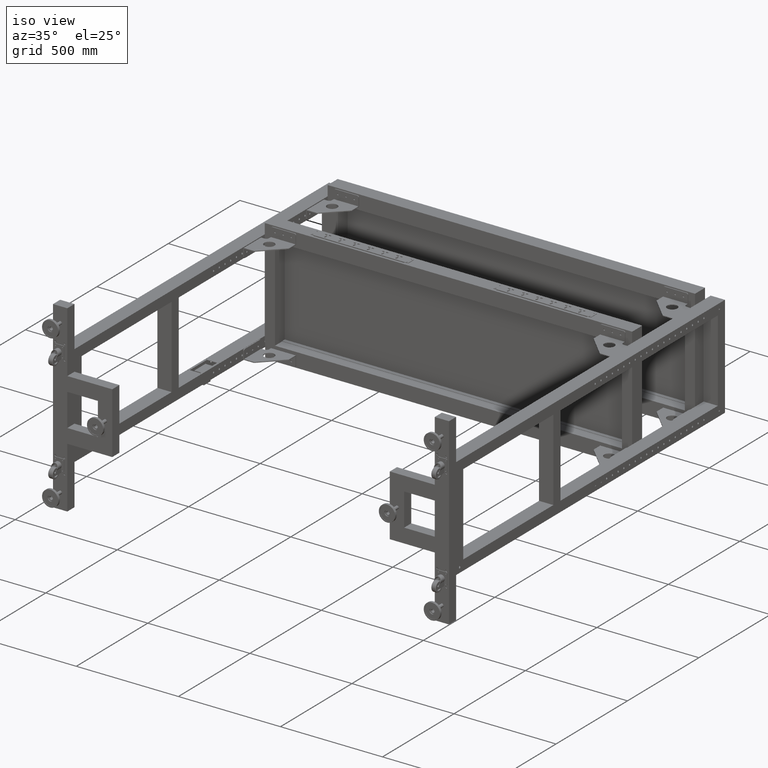
[diagram: clean part render]
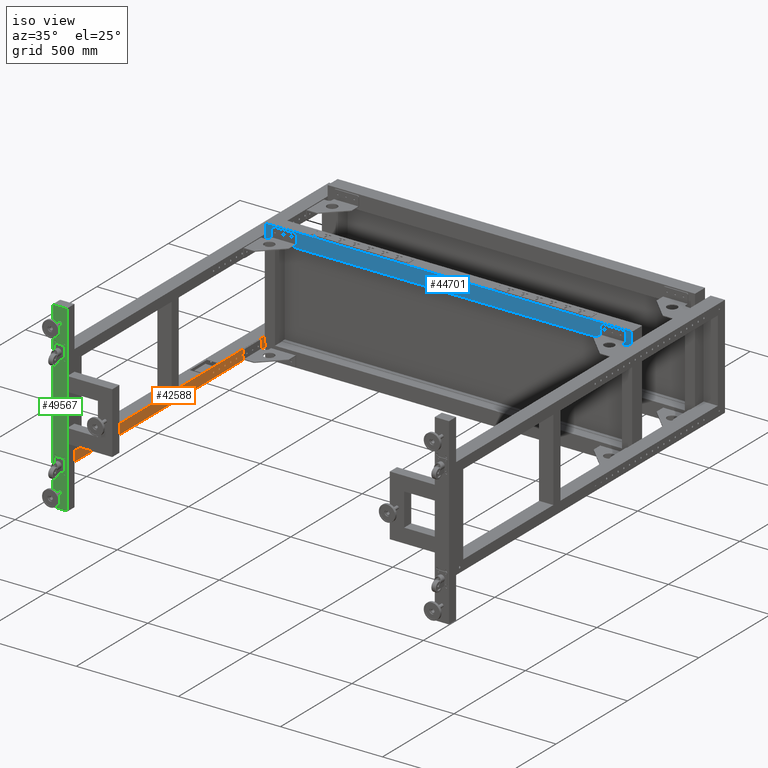
[diagram: same view with three faces highlighted in distinct colors, each labeled with its STEP entity id]
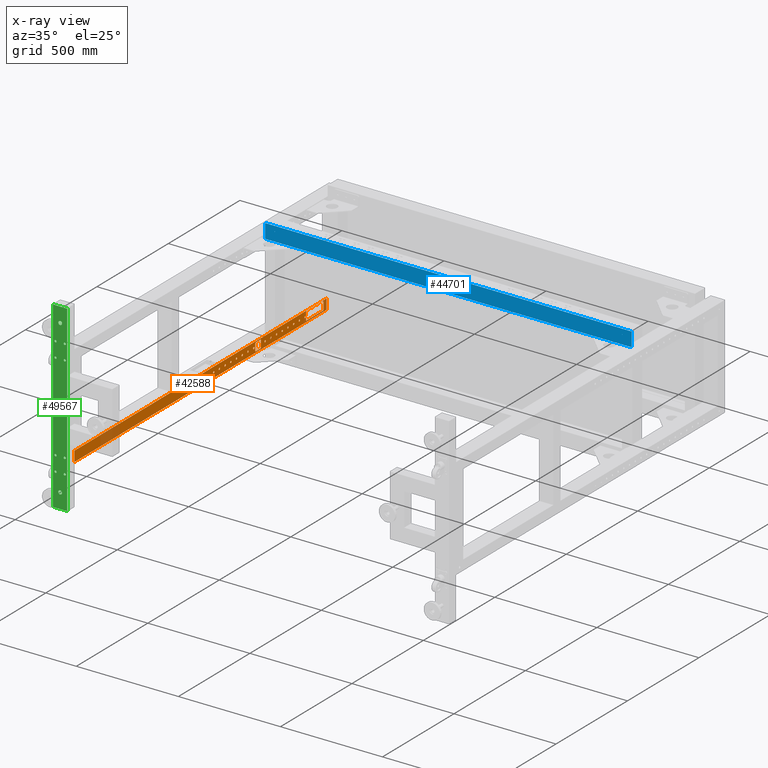
[diagram: x-ray of the same camera — body ghosted, the three highlighted faces saturated]
A machine part, iso view with three faces highlighted in distinct colors.
The next image is the same camera in x-ray (body ghosted, the three faces saturated) — at least one of them is partly hidden behind the body in this view.
Their STEP definitions:

[orange] entity #42588 — the highlighted planar face has unit normal (1, 0, -0).
#106 = VERTEX_POINT ( 'NONE', #49664 ) ;
#463 = DIRECTION ( 'NONE',  ( 1.000000000000000000, 0.000000000000000000, 0.000000000000000000 ) ) ;
#912 = ORIENTED_EDGE ( 'NONE', *, *, #78377, .F. ) ;
#976 = EDGE_CURVE ( 'NONE', #51626, #57045, #46276, .T. ) ;
#1163 = FACE_BOUND ( 'NONE', #53420, .T. ) ;
#1526 = ORIENTED_EDGE ( 'NONE', *, *, #976, .F. ) ;
#1594 = AXIS2_PLACEMENT_3D ( 'NONE', #24763, #25142, #25529 ) ;
#1618 = DIRECTION ( 'NONE',  ( 1.000000000000000000, 0.000000000000000000, 0.000000000000000000 ) ) ;
#1619 = VERTEX_POINT ( 'NONE', #31347 ) ;
#1625 = ORIENTED_EDGE ( 'NONE', *, *, #69213, .F. ) ;
#1938 = EDGE_CURVE ( 'NONE', #7045, #28703, #2931, .T. ) ;
#2304 = DIRECTION ( 'NONE',  ( 0.000000000000000000, 0.000000000000000000, -1.000000000000000000 ) ) ;
#2619 = DIRECTION ( 'NONE',  ( 0.000000000000000000, 1.000000000000000000, 0.000000000000000000 ) ) ;
#2707 = CIRCLE ( 'NONE', #34578, 4.500000000000003553 ) ;
#2758 = DIRECTION ( 'NONE',  ( 1.000000000000000000, 0.000000000000000000, 0.000000000000000000 ) ) ;
#2931 = CIRCLE ( 'NONE', #19459, 4.500000000000003553 ) ;
#3317 = AXIS2_PLACEMENT_3D ( 'NONE', #59276, #65247, #39728 ) ;
#3329 = CIRCLE ( 'NONE', #47959, 5.000000000000004441 ) ;
#3696 = ORIENTED_EDGE ( 'NONE', *, *, #15700, .T. ) ;
#3954 = CARTESIAN_POINT ( 'NONE',  ( -1318.172487437185055, -844.5589195979889610, -200.0000000000000000 ) ) ;
#4042 = VERTEX_POINT ( 'NONE', #11555 ) ;
#4644 = VERTEX_POINT ( 'NONE', #56912 ) ;
#4696 = VERTEX_POINT ( 'NONE', #28120 ) ;
#4967 = CARTESIAN_POINT ( 'NONE',  ( -1318.172487437185055, 420.4410804020109822, -210.0000000000000000 ) ) ;
#5196 = DIRECTION ( 'NONE',  ( 0.000000000000000000, 0.000000000000000000, -1.000000000000000000 ) ) ;
#5312 = AXIS2_PLACEMENT_3D ( 'NONE', #33895, #65401, #15517 ) ;
#5422 = ORIENTED_EDGE ( 'NONE', *, *, #63790, .F. ) ;
#5489 = AXIS2_PLACEMENT_3D ( 'NONE', #34529, #6468, #10588 ) ;
#5662 = AXIS2_PLACEMENT_3D ( 'NONE', #21085, #19916, #51006 ) ;
#5840 = EDGE_LOOP ( 'NONE', ( #46869, #49035, #43749, #69278, #48910, #64739 ) ) ;
#6080 = DIRECTION ( 'NONE',  ( 0.000000000000000000, 0.000000000000000000, -1.000000000000000000 ) ) ;
#6287 = VERTEX_POINT ( 'NONE', #17662 ) ;
#6362 = CARTESIAN_POINT ( 'NONE',  ( -1318.172487437185055, 289.4410804020109822, -225.0000000000000000 ) ) ;
#6375 = FACE_BOUND ( 'NONE', #38305, .T. ) ;
#6452 = CARTESIAN_POINT ( 'NONE',  ( -1318.172487437185055, -844.5589195979889610, -250.0000000000000000 ) ) ;
#6468 = DIRECTION ( 'NONE',  ( 1.000000000000000000, 0.000000000000000000, 0.000000000000000000 ) ) ;
#6903 = LINE ( 'NONE', #42828, #27802 ) ;
#6981 = CARTESIAN_POINT ( 'NONE',  ( -1318.172487437185055, 409.4410804020109822, -225.0000000000000000 ) ) ;
#7045 = VERTEX_POINT ( 'NONE', #77713 ) ;
#7048 = ORIENTED_EDGE ( 'NONE', *, *, #52225, .F. ) ;
#7052 = EDGE_CURVE ( 'NONE', #49271, #33398, #10689, .T. ) ;
#7080 = EDGE_CURVE ( 'NONE', #62890, #37401, #62044, .T. ) ;
#7149 = EDGE_CURVE ( 'NONE', #12536, #1619, #47655, .T. ) ;
#7468 = DIRECTION ( 'NONE',  ( 1.000000000000000000, 0.000000000000000000, 0.000000000000000000 ) ) ;
#7562 = FACE_BOUND ( 'NONE', #38190, .T. ) ;
#8051 = EDGE_CURVE ( 'NONE', #52617, #10089, #55404, .T. ) ;
#8303 = AXIS2_PLACEMENT_3D ( 'NONE', #36330, #18733, #5196 ) ;
#8470 = CIRCLE ( 'NONE', #33939, 4.499999999999893419 ) ;
#8724 = FACE_OUTER_BOUND ( 'NONE', #36743, .T. ) ;
#8990 = CARTESIAN_POINT ( 'NONE',  ( -1318.172487437185055, 489.4410804020110390, -225.0000000000000000 ) ) ;
#9263 = AXIS2_PLACEMENT_3D ( 'NONE', #12537, #36103, #54835 ) ;
#9878 = VERTEX_POINT ( 'NONE', #70071 ) ;
#10089 = VERTEX_POINT ( 'NONE', #11408 ) ;
#10175 = CARTESIAN_POINT ( 'NONE',  ( -1318.172487437185055, 409.4410804020109822, -220.5000000000000000 ) ) ;
#10409 = EDGE_CURVE ( 'NONE', #51678, #62356, #51293, .T. ) ;
#10549 = ORIENTED_EDGE ( 'NONE', *, *, #66693, .F. ) ;
#10587 = CARTESIAN_POINT ( 'NONE',  ( -1318.172487437185055, 460.4410804020110390, -210.0000000000000000 ) ) ;
#10588 = DIRECTION ( 'NONE',  ( 0.000000000000000000, 0.000000000000000000, -1.000000000000000000 ) ) ;
#10689 = CIRCLE ( 'NONE', #25936, 4.500000000000003553 ) ;
#10853 = DIRECTION ( 'NONE',  ( 4.625929269271499719E-16, 0.000000000000000000, 1.000000000000000000 ) ) ;
#11375 = VERTEX_POINT ( 'NONE', #12603 ) ;
#11408 = CARTESIAN_POINT ( 'NONE',  ( -1318.172487437184827, 782.9410804020109254, -200.9999999999986926 ) ) ;
#11430 = DIRECTION ( 'NONE',  ( 1.000000000000000000, 0.000000000000000000, 0.000000000000000000 ) ) ;
#11491 = EDGE_CURVE ( 'NONE', #57045, #78732, #63238, .T. ) ;
#11505 = CARTESIAN_POINT ( 'NONE',  ( -1318.172487437185055, 169.4410804020110106, -225.0000000000000000 ) ) ;
#11555 = CARTESIAN_POINT ( 'NONE',  ( -1318.172487437185055, 769.4410804020110390, -220.5000000000000000 ) ) ;
#11656 = DIRECTION ( 'NONE',  ( 0.000000000000000000, 1.000000000000000000, 0.000000000000000000 ) ) ;
#11672 = AXIS2_PLACEMENT_3D ( 'NONE', #18338, #25096, #55051 ) ;
#11774 = DIRECTION ( 'NONE',  ( 1.000000000000000000, 0.000000000000000000, 0.000000000000000000 ) ) ;
#11820 = CARTESIAN_POINT ( 'NONE',  ( -1318.172487437185055, 369.4410804020110959, -220.5000000000000000 ) ) ;
#11841 = AXIS2_PLACEMENT_3D ( 'NONE', #20298, #15898, #38679 ) ;
#11938 = ORIENTED_EDGE ( 'NONE', *, *, #67218, .F. ) ;
#12029 = CARTESIAN_POINT ( 'NONE',  ( -1318.172487437185055, 249.4410804020110675, -225.0000000000000000 ) ) ;
#12071 = CARTESIAN_POINT ( 'NONE',  ( -1318.172487437185055, 609.4410804020110390, -225.0000000000000000 ) ) ;
#12240 = CIRCLE ( 'NONE', #61901, 4.500000000000003553 ) ;
#12247 = DIRECTION ( 'NONE',  ( 0.000000000000000000, -1.000000000000000000, 0.000000000000000000 ) ) ;
#12380 = FACE_BOUND ( 'NONE', #5840, .T. ) ;
#12381 = ORIENTED_EDGE ( 'NONE', *, *, #35184, .F. ) ;
#12536 = VERTEX_POINT ( 'NONE', #74010 ) ;
#12537 = CARTESIAN_POINT ( 'NONE',  ( -1318.172487437185055, 369.4410804020110959, -225.0000000000000000 ) ) ;
#12603 = CARTESIAN_POINT ( 'NONE',  ( -1318.172487437185055, 649.4410804020110390, -229.5000000000000000 ) ) ;
#12815 = AXIS2_PLACEMENT_3D ( 'NONE', #42689, #48274, #73751 ) ;
#12929 = CIRCLE ( 'NONE', #49943, 4.499999999999893419 ) ;
#14158 = CIRCLE ( 'NONE', #57517, 4.499999999999893419 ) ;
#14172 = CARTESIAN_POINT ( 'NONE',  ( -1318.172487437185055, 329.4410804020110390, -229.5000000000000000 ) ) ;
#14319 = PLANE ( 'NONE',  #11841 ) ;
#14747 = CARTESIAN_POINT ( 'NONE',  ( -1318.172487437185055, 209.4410804020110390, -220.5000000000000000 ) ) ;
#14823 = CARTESIAN_POINT ( 'NONE',  ( -1318.172487437185055, 489.4410804020110390, -220.5000000000000000 ) ) ;
#14984 = DIRECTION ( 'NONE',  ( 1.000000000000000000, 0.000000000000000000, 0.000000000000000000 ) ) ;
#15024 = EDGE_LOOP ( 'NONE', ( #68508, #32543 ) ) ;
#15197 = AXIS2_PLACEMENT_3D ( 'NONE', #56997, #45007, #2304 ) ;
#15345 = CIRCLE ( 'NONE', #71471, 4.500000000000003553 ) ;
#15422 = AXIS2_PLACEMENT_3D ( 'NONE', #11505, #33984, #77717 ) ;
#15517 = DIRECTION ( 'NONE',  ( 0.000000000000000000, 0.000000000000000000, -1.000000000000000000 ) ) ;
#15623 = ORIENTED_EDGE ( 'NONE', *, *, #62219, .F. ) ;
#15700 = EDGE_CURVE ( 'NONE', #4644, #78732, #43161, .T. ) ;
#15710 = EDGE_CURVE ( 'NONE', #26434, #35495, #25799, .T. ) ;
#15866 = VERTEX_POINT ( 'NONE', #43935 ) ;
#15898 = DIRECTION ( 'NONE',  ( 1.000000000000000000, 0.000000000000000000, -2.775557561562890365E-16 ) ) ;
#16285 = CARTESIAN_POINT ( 'NONE',  ( -1318.172487437185055, 425.4410804020109822, -240.0000000000000000 ) ) ;
#16289 = CARTESIAN_POINT ( 'NONE',  ( -1318.172487437185055, 649.4410804020110390, -225.0000000000000000 ) ) ;
#16457 = DIRECTION ( 'NONE',  ( 0.000000000000000000, 0.000000000000000000, -1.000000000000000000 ) ) ;
#16573 = AXIS2_PLACEMENT_3D ( 'NONE', #45432, #70968, #57403 ) ;
#16636 = ORIENTED_EDGE ( 'NONE', *, *, #44828, .F. ) ;
#17050 = VECTOR ( 'NONE', #59401, 1000.000000000000000 ) ;
#17068 = AXIS2_PLACEMENT_3D ( 'NONE', #44837, #39653, #25695 ) ;
#17205 = CIRCLE ( 'NONE', #18457, 4.500000000000003553 ) ;
#17524 = VERTEX_POINT ( 'NONE', #37059 ) ;
#17566 = CARTESIAN_POINT ( 'NONE',  ( -1318.172487437185055, 919.4410804020110390, -200.0000000000000000 ) ) ;
#17662 = CARTESIAN_POINT ( 'NONE',  ( -1318.172487437185055, 689.4410804020110390, -229.5000000000000000 ) ) ;
#17832 = CARTESIAN_POINT ( 'NONE',  ( -1318.172487437185055, 775.9410804020110390, -243.9899999999987017 ) ) ;
#17924 = CARTESIAN_POINT ( 'NONE',  ( -1318.172487437185055, 851.4410804020109254, -243.9899999999986733 ) ) ;
#17998 = VERTEX_POINT ( 'NONE', #51283 ) ;
#18056 = CARTESIAN_POINT ( 'NONE',  ( -1318.172487437185055, 129.4410804020110675, -229.5000000000000000 ) ) ;
#18175 = CIRCLE ( 'NONE', #1594, 4.500000000000003553 ) ;
#18208 = CARTESIAN_POINT ( 'NONE',  ( -1318.172487437185055, 769.4410804020110390, -229.5000000000000000 ) ) ;
#18274 = EDGE_LOOP ( 'NONE', ( #46786, #25561 ) ) ;
#18338 = CARTESIAN_POINT ( 'NONE',  ( -1318.172487437185055, 529.4410804020111527, -225.0000000000000000 ) ) ;
#18353 = FACE_BOUND ( 'NONE', #70997, .T. ) ;
#18457 = AXIS2_PLACEMENT_3D ( 'NONE', #70316, #26433, #75883 ) ;
#18722 = EDGE_CURVE ( 'NONE', #9878, #106, #12929, .T. ) ;
#18733 = DIRECTION ( 'NONE',  ( 1.000000000000000000, 0.000000000000000000, 0.000000000000000000 ) ) ;
#18960 = VERTEX_POINT ( 'NONE', #17832 ) ;
#19138 = DIRECTION ( 'NONE',  ( -1.000000000000000000, 0.000000000000000000, 3.491776919586969661E-17 ) ) ;
#19349 = ORIENTED_EDGE ( 'NONE', *, *, #59146, .F. ) ;
#19354 = AXIS2_PLACEMENT_3D ( 'NONE', #69780, #21882, #34666 ) ;
#19372 = LINE ( 'NONE', #30189, #49979 ) ;
#19459 = AXIS2_PLACEMENT_3D ( 'NONE', #28501, #22897, #34495 ) ;
#19916 = DIRECTION ( 'NONE',  ( 1.000000000000000000, 0.000000000000000000, 0.000000000000000000 ) ) ;
#20298 = CARTESIAN_POINT ( 'NONE',  ( -1318.172487437185055, -844.5589195979889610, -250.0000000000000000 ) ) ;
#20370 = EDGE_CURVE ( 'NONE', #62744, #53084, #44030, .T. ) ;
#21085 = CARTESIAN_POINT ( 'NONE',  ( -1318.172487437185055, 169.4410804020110106, -225.0000000000000000 ) ) ;
#21153 = CARTESIAN_POINT ( 'NONE',  ( -1318.172487437184827, 896.9410804020110390, -207.9999999999986926 ) ) ;
#21170 = VECTOR ( 'NONE', #26701, 1000.000000000000000 ) ;
#21384 = CARTESIAN_POINT ( 'NONE',  ( -1318.172487437185055, 455.4410804020110390, -245.0000000000000000 ) ) ;
#21482 = VERTEX_POINT ( 'NONE', #67396 ) ;
#21701 = AXIS2_PLACEMENT_3D ( 'NONE', #16289, #33864, #53008 ) ;
#21882 = DIRECTION ( 'NONE',  ( -1.000000000000000000, 0.000000000000000000, 3.491776919586969661E-17 ) ) ;
#22115 = CARTESIAN_POINT ( 'NONE',  ( -1318.172487437185055, 129.4410804020110675, -225.0000000000000000 ) ) ;
#22206 = AXIS2_PLACEMENT_3D ( 'NONE', #16285, #53004, #47019 ) ;
#22480 = VECTOR ( 'NONE', #72964, 1000.000000000000000 ) ;
#22591 = DIRECTION ( 'NONE',  ( 0.000000000000000000, 0.000000000000000000, -1.000000000000000000 ) ) ;
#22897 = DIRECTION ( 'NONE',  ( 1.000000000000000000, 0.000000000000000000, 0.000000000000000000 ) ) ;
#23024 = EDGE_LOOP ( 'NONE', ( #57341, #33723, #16636, #5422, #69310, #47827, #49491, #7048 ) ) ;
#23235 = DIRECTION ( 'NONE',  ( 1.000000000000000000, 0.000000000000000000, 0.000000000000000000 ) ) ;
#23268 = CARTESIAN_POINT ( 'NONE',  ( -1318.172487437184827, 889.9410804020109254, -200.9999999999986926 ) ) ;
#23503 = EDGE_CURVE ( 'NONE', #35495, #26434, #57081, .T. ) ;
#23979 = ORIENTED_EDGE ( 'NONE', *, *, #15710, .F. ) ;
#24253 = EDGE_LOOP ( 'NONE', ( #41665, #10549 ) ) ;
#24618 = CIRCLE ( 'NONE', #38641, 4.500000000000003553 ) ;
#24708 = LINE ( 'NONE', #17924, #78174 ) ;
#24763 = CARTESIAN_POINT ( 'NONE',  ( -1318.172487437185055, 769.4410804020110390, -225.0000000000000000 ) ) ;
#25096 = DIRECTION ( 'NONE',  ( 1.000000000000000000, 0.000000000000000000, 0.000000000000000000 ) ) ;
#25142 = DIRECTION ( 'NONE',  ( 1.000000000000000000, 0.000000000000000000, 0.000000000000000000 ) ) ;
#25319 = ORIENTED_EDGE ( 'NONE', *, *, #7052, .F. ) ;
#25357 = EDGE_CURVE ( 'NONE', #77887, #29748, #60116, .T. ) ;
#25359 = ORIENTED_EDGE ( 'NONE', *, *, #40747, .F. ) ;
#25405 = EDGE_CURVE ( 'NONE', #77887, #10089, #50052, .T. ) ;
#25529 = DIRECTION ( 'NONE',  ( 0.000000000000000000, 0.000000000000000000, -1.000000000000000000 ) ) ;
#25545 = CARTESIAN_POINT ( 'NONE',  ( -1318.172487437185055, 569.4410804020110390, -225.0000000000000000 ) ) ;
#25561 = ORIENTED_EDGE ( 'NONE', *, *, #67260, .F. ) ;
#25669 = VERTEX_POINT ( 'NONE', #71552 ) ;
#25695 = DIRECTION ( 'NONE',  ( 0.000000000000000000, 0.000000000000000000, -1.000000000000000000 ) ) ;
#25729 = CARTESIAN_POINT ( 'NONE',  ( -1318.172487437185055, 919.4410804020110390, -250.0000000000000000 ) ) ;
#25799 = CIRCLE ( 'NONE', #75502, 4.500000000000003553 ) ;
#25860 = CARTESIAN_POINT ( 'NONE',  ( -1318.172487437184827, 896.9410804020110390, -200.9999999999986926 ) ) ;
#25900 = FACE_BOUND ( 'NONE', #51080, .T. ) ;
#25936 = AXIS2_PLACEMENT_3D ( 'NONE', #6981, #55277, #48898 ) ;
#26131 = VERTEX_POINT ( 'NONE', #28376 ) ;
#26190 = EDGE_LOOP ( 'NONE', ( #58651, #63376 ) ) ;
#26251 = AXIS2_PLACEMENT_3D ( 'NONE', #67703, #7468, #73681 ) ;
#26260 = ORIENTED_EDGE ( 'NONE', *, *, #54676, .F. ) ;
#26433 = DIRECTION ( 'NONE',  ( 1.000000000000000000, 0.000000000000000000, 0.000000000000000000 ) ) ;
#26434 = VERTEX_POINT ( 'NONE', #14747 ) ;
#26521 = EDGE_CURVE ( 'NONE', #45715, #66342, #48648, .T. ) ;
#26701 = DIRECTION ( 'NONE',  ( 0.000000000000000000, 1.000000000000000000, 0.000000000000000000 ) ) ;
#27486 = EDGE_CURVE ( 'NONE', #68621, #4042, #18175, .T. ) ;
#27802 = VECTOR ( 'NONE', #49197, 1000.000000000000000 ) ;
#28120 = CARTESIAN_POINT ( 'NONE',  ( -1318.172487437185055, 729.4410804020110390, -229.5000000000000000 ) ) ;
#28368 = VECTOR ( 'NONE', #11656, 1000.000000000000000 ) ;
#28376 = CARTESIAN_POINT ( 'NONE',  ( -1318.172487437185055, 649.4410804020110390, -220.5000000000000000 ) ) ;
#28395 = CIRCLE ( 'NONE', #9263, 4.500000000000003553 ) ;
#28501 = CARTESIAN_POINT ( 'NONE',  ( -1318.172487437185055, 489.4410804020110390, -225.0000000000000000 ) ) ;
#28571 = DIRECTION ( 'NONE',  ( 1.000000000000000000, 0.000000000000000000, 0.000000000000000000 ) ) ;
#28591 = ORIENTED_EDGE ( 'NONE', *, *, #43419, .F. ) ;
#28703 = VERTEX_POINT ( 'NONE', #14823 ) ;
#28728 = EDGE_CURVE ( 'NONE', #31821, #60533, #66787, .T. ) ;
#28821 = ORIENTED_EDGE ( 'NONE', *, *, #26521, .F. ) ;
#29271 = EDGE_CURVE ( 'NONE', #4696, #25669, #17205, .T. ) ;
#29748 = VERTEX_POINT ( 'NONE', #21153 ) ;
#30150 = EDGE_CURVE ( 'NONE', #33398, #49271, #33089, .T. ) ;
#30189 = CARTESIAN_POINT ( 'NONE',  ( -1318.172487437185055, 455.4410804020110390, -205.0000000000000284 ) ) ;
#30481 = CIRCLE ( 'NONE', #75065, 4.500000000000003553 ) ;
#31101 = EDGE_CURVE ( 'NONE', #11375, #26131, #65065, .T. ) ;
#31239 = CIRCLE ( 'NONE', #8303, 4.499999999999893419 ) ;
#31309 = DIRECTION ( 'NONE',  ( 0.000000000000000000, -1.000000000000000000, 0.000000000000000000 ) ) ;
#31347 = CARTESIAN_POINT ( 'NONE',  ( -1318.172487437185055, 529.4410804020111527, -220.5000000000000000 ) ) ;
#31497 = FACE_BOUND ( 'NONE', #60264, .T. ) ;
#31594 = VECTOR ( 'NONE', #44097, 1000.000000000000000 ) ;
#31693 = EDGE_CURVE ( 'NONE', #28703, #7045, #2707, .T. ) ;
#31739 = CARTESIAN_POINT ( 'NONE',  ( -1318.172487437185055, 460.4410804020110390, -240.0000000000000000 ) ) ;
#31821 = VERTEX_POINT ( 'NONE', #10587 ) ;
#31883 = FACE_BOUND ( 'NONE', #34639, .T. ) ;
#32363 = AXIS2_PLACEMENT_3D ( 'NONE', #68697, #37596, #38784 ) ;
#32541 = VERTEX_POINT ( 'NONE', #31739 ) ;
#32543 = ORIENTED_EDGE ( 'NONE', *, *, #61881, .F. ) ;
#32663 = CIRCLE ( 'NONE', #3317, 4.500000000000003553 ) ;
#32708 = EDGE_LOOP ( 'NONE', ( #25359, #28591 ) ) ;
#33089 = CIRCLE ( 'NONE', #15197, 4.500000000000003553 ) ;
#33398 = VERTEX_POINT ( 'NONE', #10175 ) ;
#33476 = AXIS2_PLACEMENT_3D ( 'NONE', #69979, #52044, #75951 ) ;
#33483 = CARTESIAN_POINT ( 'NONE',  ( -1318.172487437185055, 455.4410804020110390, -240.0000000000000000 ) ) ;
#33723 = ORIENTED_EDGE ( 'NONE', *, *, #61732, .F. ) ;
#33816 = VERTEX_POINT ( 'NONE', #40437 ) ;
#33864 = DIRECTION ( 'NONE',  ( 1.000000000000000000, 0.000000000000000000, 0.000000000000000000 ) ) ;
#33894 = DIRECTION ( 'NONE',  ( 0.000000000000000000, 0.000000000000000000, -1.000000000000000000 ) ) ;
#33895 = CARTESIAN_POINT ( 'NONE',  ( -1318.172487437185055, 369.4410804020110959, -225.0000000000000000 ) ) ;
#33939 = AXIS2_PLACEMENT_3D ( 'NONE', #48629, #73733, #78924 ) ;
#33984 = DIRECTION ( 'NONE',  ( 1.000000000000000000, 0.000000000000000000, 0.000000000000000000 ) ) ;
#34495 = DIRECTION ( 'NONE',  ( 0.000000000000000000, 0.000000000000000000, -1.000000000000000000 ) ) ;
#34529 = CARTESIAN_POINT ( 'NONE',  ( -1318.172487437185055, 289.4410804020109822, -225.0000000000000000 ) ) ;
#34578 = AXIS2_PLACEMENT_3D ( 'NONE', #8990, #14984, #39336 ) ;
#34639 = EDGE_LOOP ( 'NONE', ( #12381, #58048 ) ) ;
#34666 = DIRECTION ( 'NONE',  ( 0.000000000000000000, 0.000000000000000000, -1.000000000000000000 ) ) ;
#34823 = CIRCLE ( 'NONE', #5489, 4.499999999999893419 ) ;
#35041 = CARTESIAN_POINT ( 'NONE',  ( -1318.172487437185055, 249.4410804020110675, -229.5000000000000000 ) ) ;
#35082 = AXIS2_PLACEMENT_3D ( 'NONE', #33483, #39096, #33894 ) ;
#35184 = EDGE_CURVE ( 'NONE', #106, #9878, #34823, .T. ) ;
#35495 = VERTEX_POINT ( 'NONE', #53106 ) ;
#35520 = CIRCLE ( 'NONE', #64798, 4.500000000000003553 ) ;
#36103 = DIRECTION ( 'NONE',  ( 1.000000000000000000, 0.000000000000000000, 0.000000000000000000 ) ) ;
#36330 = CARTESIAN_POINT ( 'NONE',  ( -1318.172487437185055, 249.4410804020110675, -225.0000000000000000 ) ) ;
#36542 = CARTESIAN_POINT ( 'NONE',  ( -1318.172487437185055, 529.4410804020111527, -225.0000000000000000 ) ) ;
#36678 = LINE ( 'NONE', #25860, #22480 ) ;
#36715 = FACE_BOUND ( 'NONE', #71352, .T. ) ;
#36743 = EDGE_LOOP ( 'NONE', ( #53413, #1526, #39093, #3696 ) ) ;
#37059 = CARTESIAN_POINT ( 'NONE',  ( -1318.172487437185055, 455.4410804020110390, -245.0000000000000000 ) ) ;
#37273 = CIRCLE ( 'NONE', #48724, 4.500000000000003553 ) ;
#37342 = LINE ( 'NONE', #45275, #44052 ) ;
#37401 = VERTEX_POINT ( 'NONE', #47507 ) ;
#37493 = FACE_BOUND ( 'NONE', #24253, .T. ) ;
#37596 = DIRECTION ( 'NONE',  ( 1.000000000000000000, 0.000000000000000000, 0.000000000000000000 ) ) ;
#37640 = EDGE_CURVE ( 'NONE', #15866, #64960, #38795, .T. ) ;
#37651 = DIRECTION ( 'NONE',  ( 1.000000000000000000, 0.000000000000000000, 0.000000000000000000 ) ) ;
#37771 = EDGE_CURVE ( 'NONE', #37401, #21482, #56630, .T. ) ;
#37874 = DIRECTION ( 'NONE',  ( 1.000000000000000000, 0.000000000000000000, 0.000000000000000000 ) ) ;
#38190 = EDGE_LOOP ( 'NONE', ( #48204, #23979 ) ) ;
#38272 = FACE_BOUND ( 'NONE', #15024, .T. ) ;
#38305 = EDGE_LOOP ( 'NONE', ( #75724, #11938 ) ) ;
#38641 = AXIS2_PLACEMENT_3D ( 'NONE', #72074, #11430, #73247 ) ;
#38679 = DIRECTION ( 'NONE',  ( -2.775557561562890365E-16, 0.000000000000000000, -1.000000000000000000 ) ) ;
#38784 = DIRECTION ( 'NONE',  ( 0.000000000000000000, 0.000000000000000000, -1.000000000000000000 ) ) ;
#38795 = CIRCLE ( 'NONE', #5662, 4.500000000000003553 ) ;
#39093 = ORIENTED_EDGE ( 'NONE', *, *, #65656, .T. ) ;
#39096 = DIRECTION ( 'NONE',  ( 1.000000000000000000, 0.000000000000000000, 0.000000000000000000 ) ) ;
#39336 = DIRECTION ( 'NONE',  ( 0.000000000000000000, 0.000000000000000000, -1.000000000000000000 ) ) ;
#39653 = DIRECTION ( 'NONE',  ( 1.000000000000000000, 0.000000000000000000, 0.000000000000000000 ) ) ;
#39728 = DIRECTION ( 'NONE',  ( 0.000000000000000000, 0.000000000000000000, -1.000000000000000000 ) ) ;
#39919 = ORIENTED_EDGE ( 'NONE', *, *, #50654, .F. ) ;
#39995 = CIRCLE ( 'NONE', #17068, 4.500000000000003553 ) ;
#40262 = CARTESIAN_POINT ( 'NONE',  ( -1318.172487437185055, 569.4410804020110390, -229.5000000000000000 ) ) ;
#40437 = CARTESIAN_POINT ( 'NONE',  ( -1318.172487437185055, 689.4410804020110390, -220.5000000000000000 ) ) ;
#40610 = DIRECTION ( 'NONE',  ( 0.000000000000000000, 0.000000000000000000, -1.000000000000000000 ) ) ;
#40747 = EDGE_CURVE ( 'NONE', #59693, #63886, #15345, .T. ) ;
#41194 = LINE ( 'NONE', #71897, #64416 ) ;
#41372 = EDGE_CURVE ( 'NONE', #1619, #12536, #70267, .T. ) ;
#41665 = ORIENTED_EDGE ( 'NONE', *, *, #10409, .F. ) ;
#42538 = AXIS2_PLACEMENT_3D ( 'NONE', #36542, #49280, #47037 ) ;
#42588 = ADVANCED_FACE ( 'NONE', ( #12380, #37493, #31497, #7562, #49832, #31883, #55848, #18353, #1163, #56242, #25900, #38272, #61049, #42707, #67051, #36715, #6375, #75736, #8724 ), #14319, .T. ) ;
#42689 = CARTESIAN_POINT ( 'NONE',  ( -1318.172487437185055, 649.4410804020110390, -225.0000000000000000 ) ) ;
#42694 = DIRECTION ( 'NONE',  ( 0.000000000000000000, 0.000000000000000000, -1.000000000000000000 ) ) ;
#42707 = FACE_BOUND ( 'NONE', #18274, .T. ) ;
#42828 = CARTESIAN_POINT ( 'NONE',  ( -1318.172487437185055, -844.5589195979889610, -250.0000000000000000 ) ) ;
#43064 = AXIS2_PLACEMENT_3D ( 'NONE', #71625, #11774, #48101 ) ;
#43161 = LINE ( 'NONE', #6452, #28368 ) ;
#43163 = CARTESIAN_POINT ( 'NONE',  ( -1318.172487437185055, 329.4410804020110390, -220.5000000000000000 ) ) ;
#43419 = EDGE_CURVE ( 'NONE', #63886, #59693, #39995, .T. ) ;
#43620 = ORIENTED_EDGE ( 'NONE', *, *, #52659, .F. ) ;
#43749 = ORIENTED_EDGE ( 'NONE', *, *, #62223, .F. ) ;
#43935 = CARTESIAN_POINT ( 'NONE',  ( -1318.172487437185055, 169.4410804020110106, -229.5000000000000000 ) ) ;
#44030 = CIRCLE ( 'NONE', #26251, 4.499999999999893419 ) ;
#44052 = VECTOR ( 'NONE', #75577, 1000.000000000000000 ) ;
#44097 = DIRECTION ( 'NONE',  ( -2.775557561562890365E-16, 8.326672684688670109E-16, -1.000000000000000000 ) ) ;
#44828 = EDGE_CURVE ( 'NONE', #17524, #32541, #69475, .T. ) ;
#44837 = CARTESIAN_POINT ( 'NONE',  ( -1318.172487437185055, 609.4410804020110390, -225.0000000000000000 ) ) ;
#45007 = DIRECTION ( 'NONE',  ( 1.000000000000000000, 0.000000000000000000, 0.000000000000000000 ) ) ;
#45275 = CARTESIAN_POINT ( 'NONE',  ( -1318.172487437185055, 775.9410804020110390, -243.9999999999986926 ) ) ;
#45432 = CARTESIAN_POINT ( 'NONE',  ( -1318.172487437185055, 769.4410804020110390, -225.0000000000000000 ) ) ;
#45558 = CARTESIAN_POINT ( 'NONE',  ( -1318.172487437185055, 409.4410804020109822, -229.5000000000000000 ) ) ;
#45715 = VERTEX_POINT ( 'NONE', #72643 ) ;
#46228 = EDGE_LOOP ( 'NONE', ( #71676, #15623 ) ) ;
#46276 = LINE ( 'NONE', #3954, #21170 ) ;
#46475 = DIRECTION ( 'NONE',  ( 1.000000000000000000, 0.000000000000000000, 0.000000000000000000 ) ) ;
#46723 = EDGE_CURVE ( 'NONE', #52617, #18960, #37342, .T. ) ;
#46774 = CARTESIAN_POINT ( 'NONE',  ( -1318.172487437185055, 455.4410804020110390, -205.0000000000000284 ) ) ;
#46786 = ORIENTED_EDGE ( 'NONE', *, *, #31101, .F. ) ;
#46869 = ORIENTED_EDGE ( 'NONE', *, *, #25405, .F. ) ;
#47019 = DIRECTION ( 'NONE',  ( 0.000000000000000000, 0.000000000000000000, 1.000000000000000000 ) ) ;
#47022 = ORIENTED_EDGE ( 'NONE', *, *, #29271, .F. ) ;
#47037 = DIRECTION ( 'NONE',  ( 0.000000000000000000, 0.000000000000000000, -1.000000000000000000 ) ) ;
#47321 = CARTESIAN_POINT ( 'NONE',  ( -1318.172487437185055, 919.4410804020135402, -250.0000000000000000 ) ) ;
#47507 = CARTESIAN_POINT ( 'NONE',  ( -1318.172487437185055, 420.4410804020109822, -240.0000000000000000 ) ) ;
#47613 = CARTESIAN_POINT ( 'NONE',  ( -1318.172487437185055, -844.5589195979889610, -200.0000000000000000 ) ) ;
#47655 = CIRCLE ( 'NONE', #42538, 4.500000000000003553 ) ;
#47827 = ORIENTED_EDGE ( 'NONE', *, *, #7080, .F. ) ;
#47959 = AXIS2_PLACEMENT_3D ( 'NONE', #64551, #77276, #40610 ) ;
#48101 = DIRECTION ( 'NONE',  ( 0.000000000000000000, 0.000000000000000000, -1.000000000000000000 ) ) ;
#48204 = ORIENTED_EDGE ( 'NONE', *, *, #23503, .F. ) ;
#48274 = DIRECTION ( 'NONE',  ( 1.000000000000000000, 0.000000000000000000, 0.000000000000000000 ) ) ;
#48408 = ORIENTED_EDGE ( 'NONE', *, *, #37640, .F. ) ;
#48499 = CARTESIAN_POINT ( 'NONE',  ( -1318.172487437185055, 420.4410804020109822, -240.0000000000000000 ) ) ;
#48543 = CIRCLE ( 'NONE', #15422, 4.500000000000003553 ) ;
#48629 = CARTESIAN_POINT ( 'NONE',  ( -1318.172487437185055, 329.4410804020110390, -225.0000000000000000 ) ) ;
#48648 = CIRCLE ( 'NONE', #5312, 4.500000000000003553 ) ;
#48724 = AXIS2_PLACEMENT_3D ( 'NONE', #67974, #37651, #74334 ) ;
#48898 = DIRECTION ( 'NONE',  ( 0.000000000000000000, 0.000000000000000000, -1.000000000000000000 ) ) ;
#48910 = ORIENTED_EDGE ( 'NONE', *, *, #46723, .F. ) ;
#49035 = ORIENTED_EDGE ( 'NONE', *, *, #25357, .T. ) ;
#49197 = DIRECTION ( 'NONE',  ( -2.775557561562890365E-16, 0.000000000000000000, -1.000000000000000000 ) ) ;
#49271 = VERTEX_POINT ( 'NONE', #45558 ) ;
#49280 = DIRECTION ( 'NONE',  ( 1.000000000000000000, 0.000000000000000000, 0.000000000000000000 ) ) ;
#49491 = ORIENTED_EDGE ( 'NONE', *, *, #62475, .F. ) ;
#49664 = CARTESIAN_POINT ( 'NONE',  ( -1318.172487437185055, 289.4410804020109822, -229.5000000000000000 ) ) ;
#49832 = FACE_BOUND ( 'NONE', #66546, .T. ) ;
#49858 = VERTEX_POINT ( 'NONE', #67362 ) ;
#49943 = AXIS2_PLACEMENT_3D ( 'NONE', #6362, #37874, #42694 ) ;
#49979 = VECTOR ( 'NONE', #12247, 1000.000000000000000 ) ;
#50052 = LINE ( 'NONE', #61648, #70290 ) ;
#50163 = CARTESIAN_POINT ( 'NONE',  ( -1318.172487437185055, 169.4410804020110106, -220.5000000000000000 ) ) ;
#50302 = DIRECTION ( 'NONE',  ( 0.000000000000000000, 0.000000000000000000, -1.000000000000000000 ) ) ;
#50323 = AXIS2_PLACEMENT_3D ( 'NONE', #75358, #19138, #61863 ) ;
#50654 = EDGE_CURVE ( 'NONE', #17998, #75978, #14158, .T. ) ;
#50948 = ORIENTED_EDGE ( 'NONE', *, *, #7149, .F. ) ;
#51006 = DIRECTION ( 'NONE',  ( 0.000000000000000000, 0.000000000000000000, -1.000000000000000000 ) ) ;
#51080 = EDGE_LOOP ( 'NONE', ( #50948, #61073 ) ) ;
#51283 = CARTESIAN_POINT ( 'NONE',  ( -1318.172487437185055, 249.4410804020110675, -220.5000000000000000 ) ) ;
#51293 = CIRCLE ( 'NONE', #33476, 4.500000000000003553 ) ;
#51376 = CARTESIAN_POINT ( 'NONE',  ( -1318.172487437185055, 129.4410804020110675, -220.5000000000000000 ) ) ;
#51626 = VERTEX_POINT ( 'NONE', #47613 ) ;
#51678 = VERTEX_POINT ( 'NONE', #18056 ) ;
#51970 = EDGE_LOOP ( 'NONE', ( #57241, #1625 ) ) ;
#52044 = DIRECTION ( 'NONE',  ( 1.000000000000000000, 0.000000000000000000, 0.000000000000000000 ) ) ;
#52225 = EDGE_CURVE ( 'NONE', #60533, #64343, #19372, .T. ) ;
#52617 = VERTEX_POINT ( 'NONE', #72393 ) ;
#52659 = EDGE_CURVE ( 'NONE', #66342, #45715, #28395, .T. ) ;
#53004 = DIRECTION ( 'NONE',  ( 1.000000000000000000, 0.000000000000000000, 0.000000000000000000 ) ) ;
#53008 = DIRECTION ( 'NONE',  ( 0.000000000000000000, 0.000000000000000000, -1.000000000000000000 ) ) ;
#53084 = VERTEX_POINT ( 'NONE', #43163 ) ;
#53106 = CARTESIAN_POINT ( 'NONE',  ( -1318.172487437185055, 209.4410804020110390, -229.5000000000000000 ) ) ;
#53413 = ORIENTED_EDGE ( 'NONE', *, *, #11491, .F. ) ;
#53420 = EDGE_LOOP ( 'NONE', ( #25319, #74567 ) ) ;
#53437 = EDGE_CURVE ( 'NONE', #49858, #18960, #24708, .T. ) ;
#54676 = EDGE_CURVE ( 'NONE', #75978, #17998, #31239, .T. ) ;
#54835 = DIRECTION ( 'NONE',  ( 0.000000000000000000, 0.000000000000000000, -1.000000000000000000 ) ) ;
#55051 = DIRECTION ( 'NONE',  ( 0.000000000000000000, 0.000000000000000000, -1.000000000000000000 ) ) ;
#55277 = DIRECTION ( 'NONE',  ( 1.000000000000000000, 0.000000000000000000, 0.000000000000000000 ) ) ;
#55404 = CIRCLE ( 'NONE', #50323, 7.000000000000006217 ) ;
#55848 = FACE_BOUND ( 'NONE', #46228, .T. ) ;
#56242 = FACE_BOUND ( 'NONE', #26190, .T. ) ;
#56630 = CIRCLE ( 'NONE', #22206, 5.000000000000004441 ) ;
#56763 = VERTEX_POINT ( 'NONE', #73489 ) ;
#56912 = CARTESIAN_POINT ( 'NONE',  ( -1318.172487437185055, -844.5589195979889610, -250.0000000000000000 ) ) ;
#56997 = CARTESIAN_POINT ( 'NONE',  ( -1318.172487437185055, 409.4410804020109822, -225.0000000000000000 ) ) ;
#57045 = VERTEX_POINT ( 'NONE', #17566 ) ;
#57065 = DIRECTION ( 'NONE',  ( 0.000000000000000000, 0.000000000000000000, -1.000000000000000000 ) ) ;
#57081 = CIRCLE ( 'NONE', #43064, 4.500000000000003553 ) ;
#57241 = ORIENTED_EDGE ( 'NONE', *, *, #72473, .F. ) ;
#57341 = ORIENTED_EDGE ( 'NONE', *, *, #28728, .F. ) ;
#57403 = DIRECTION ( 'NONE',  ( 0.000000000000000000, 0.000000000000000000, -1.000000000000000000 ) ) ;
#57517 = AXIS2_PLACEMENT_3D ( 'NONE', #12029, #2758, #57065 ) ;
#58048 = ORIENTED_EDGE ( 'NONE', *, *, #18722, .F. ) ;
#58299 = CARTESIAN_POINT ( 'NONE',  ( -1318.172487437185055, 609.4410804020110390, -229.5000000000000000 ) ) ;
#58651 = ORIENTED_EDGE ( 'NONE', *, *, #1938, .F. ) ;
#59146 = EDGE_CURVE ( 'NONE', #25669, #4696, #35520, .T. ) ;
#59276 = CARTESIAN_POINT ( 'NONE',  ( -1318.172487437185055, 689.4410804020110390, -225.0000000000000000 ) ) ;
#59308 = CARTESIAN_POINT ( 'NONE',  ( -1318.172487437185055, 729.4410804020110390, -225.0000000000000000 ) ) ;
#59401 = DIRECTION ( 'NONE',  ( -4.625929269271499719E-16, -3.700743415417200564E-15, -1.000000000000000000 ) ) ;
#59693 = VERTEX_POINT ( 'NONE', #58299 ) ;
#60116 = CIRCLE ( 'NONE', #19354, 7.000000000000006217 ) ;
#60264 = EDGE_LOOP ( 'NONE', ( #48408, #912 ) ) ;
#60355 = CARTESIAN_POINT ( 'NONE',  ( -1318.172487437185055, 209.4410804020110390, -225.0000000000000000 ) ) ;
#60533 = VERTEX_POINT ( 'NONE', #46774 ) ;
#61049 = FACE_BOUND ( 'NONE', #32708, .T. ) ;
#61073 = ORIENTED_EDGE ( 'NONE', *, *, #41372, .F. ) ;
#61648 = CARTESIAN_POINT ( 'NONE',  ( -1318.172487437184827, 775.9410804020110390, -200.9999999999986926 ) ) ;
#61732 = EDGE_CURVE ( 'NONE', #32541, #31821, #41194, .T. ) ;
#61863 = DIRECTION ( 'NONE',  ( 0.000000000000000000, 0.000000000000000000, -1.000000000000000000 ) ) ;
#61881 = EDGE_CURVE ( 'NONE', #56763, #67201, #12240, .T. ) ;
#61901 = AXIS2_PLACEMENT_3D ( 'NONE', #25545, #1618, #50302 ) ;
#62044 = LINE ( 'NONE', #48499, #17050 ) ;
#62219 = EDGE_CURVE ( 'NONE', #53084, #62744, #8470, .T. ) ;
#62223 = EDGE_CURVE ( 'NONE', #49858, #29748, #36678, .T. ) ;
#62356 = VERTEX_POINT ( 'NONE', #51376 ) ;
#62452 = CIRCLE ( 'NONE', #21701, 4.500000000000003553 ) ;
#62475 = EDGE_CURVE ( 'NONE', #64343, #62890, #3329, .T. ) ;
#62744 = VERTEX_POINT ( 'NONE', #14172 ) ;
#62890 = VERTEX_POINT ( 'NONE', #4967 ) ;
#63238 = LINE ( 'NONE', #25729, #31594 ) ;
#63376 = ORIENTED_EDGE ( 'NONE', *, *, #31693, .F. ) ;
#63790 = EDGE_CURVE ( 'NONE', #21482, #17524, #64498, .T. ) ;
#63886 = VERTEX_POINT ( 'NONE', #64885 ) ;
#64343 = VERTEX_POINT ( 'NONE', #67437 ) ;
#64416 = VECTOR ( 'NONE', #10853, 1000.000000000000000 ) ;
#64498 = LINE ( 'NONE', #21384, #73601 ) ;
#64551 = CARTESIAN_POINT ( 'NONE',  ( -1318.172487437185055, 425.4410804020109822, -210.0000000000000000 ) ) ;
#64739 = ORIENTED_EDGE ( 'NONE', *, *, #8051, .T. ) ;
#64798 = AXIS2_PLACEMENT_3D ( 'NONE', #59308, #28571, #22591 ) ;
#64885 = CARTESIAN_POINT ( 'NONE',  ( -1318.172487437185055, 609.4410804020110390, -220.5000000000000000 ) ) ;
#64960 = VERTEX_POINT ( 'NONE', #50163 ) ;
#65065 = CIRCLE ( 'NONE', #12815, 4.500000000000003553 ) ;
#65247 = DIRECTION ( 'NONE',  ( 1.000000000000000000, 0.000000000000000000, 0.000000000000000000 ) ) ;
#65401 = DIRECTION ( 'NONE',  ( 1.000000000000000000, 0.000000000000000000, 0.000000000000000000 ) ) ;
#65656 = EDGE_CURVE ( 'NONE', #51626, #4644, #6903, .T. ) ;
#66342 = VERTEX_POINT ( 'NONE', #11820 ) ;
#66546 = EDGE_LOOP ( 'NONE', ( #26260, #39919 ) ) ;
#66693 = EDGE_CURVE ( 'NONE', #62356, #51678, #30481, .T. ) ;
#66787 = CIRCLE ( 'NONE', #32363, 5.000000000000004441 ) ;
#67029 = DIRECTION ( 'NONE',  ( 0.000000000000000000, -1.000000000000000000, 0.000000000000000000 ) ) ;
#67051 = FACE_BOUND ( 'NONE', #51970, .T. ) ;
#67201 = VERTEX_POINT ( 'NONE', #40262 ) ;
#67218 = EDGE_CURVE ( 'NONE', #4042, #68621, #68818, .T. ) ;
#67260 = EDGE_CURVE ( 'NONE', #26131, #11375, #62452, .T. ) ;
#67362 = CARTESIAN_POINT ( 'NONE',  ( -1318.172487437185055, 896.9410804020110390, -243.9899999999986733 ) ) ;
#67396 = CARTESIAN_POINT ( 'NONE',  ( -1318.172487437185055, 425.4410804020109822, -245.0000000000000000 ) ) ;
#67437 = CARTESIAN_POINT ( 'NONE',  ( -1318.172487437185055, 425.4410804020109822, -205.0000000000000284 ) ) ;
#67703 = CARTESIAN_POINT ( 'NONE',  ( -1318.172487437185055, 329.4410804020110390, -225.0000000000000000 ) ) ;
#67974 = CARTESIAN_POINT ( 'NONE',  ( -1318.172487437185055, 689.4410804020110390, -225.0000000000000000 ) ) ;
#68508 = ORIENTED_EDGE ( 'NONE', *, *, #71202, .F. ) ;
#68621 = VERTEX_POINT ( 'NONE', #18208 ) ;
#68697 = CARTESIAN_POINT ( 'NONE',  ( -1318.172487437185055, 455.4410804020110390, -210.0000000000000000 ) ) ;
#68818 = CIRCLE ( 'NONE', #16573, 4.500000000000003553 ) ;
#69213 = EDGE_CURVE ( 'NONE', #33816, #6287, #37273, .T. ) ;
#69278 = ORIENTED_EDGE ( 'NONE', *, *, #53437, .T. ) ;
#69310 = ORIENTED_EDGE ( 'NONE', *, *, #37771, .F. ) ;
#69475 = CIRCLE ( 'NONE', #35082, 5.000000000000004441 ) ;
#69780 = CARTESIAN_POINT ( 'NONE',  ( -1318.172487437184827, 889.9410804020109254, -207.9999999999986926 ) ) ;
#69979 = CARTESIAN_POINT ( 'NONE',  ( -1318.172487437185055, 129.4410804020110675, -225.0000000000000000 ) ) ;
#70071 = CARTESIAN_POINT ( 'NONE',  ( -1318.172487437185055, 289.4410804020109822, -220.5000000000000000 ) ) ;
#70267 = CIRCLE ( 'NONE', #11672, 4.500000000000003553 ) ;
#70290 = VECTOR ( 'NONE', #31309, 1000.000000000000000 ) ;
#70316 = CARTESIAN_POINT ( 'NONE',  ( -1318.172487437185055, 729.4410804020110390, -225.0000000000000000 ) ) ;
#70804 = DIRECTION ( 'NONE',  ( 0.000000000000000000, 0.000000000000000000, -1.000000000000000000 ) ) ;
#70968 = DIRECTION ( 'NONE',  ( 1.000000000000000000, 0.000000000000000000, 0.000000000000000000 ) ) ;
#70997 = EDGE_LOOP ( 'NONE', ( #28821, #43620 ) ) ;
#71202 = EDGE_CURVE ( 'NONE', #67201, #56763, #24618, .T. ) ;
#71352 = EDGE_LOOP ( 'NONE', ( #47022, #19349 ) ) ;
#71471 = AXIS2_PLACEMENT_3D ( 'NONE', #12071, #23235, #16457 ) ;
#71552 = CARTESIAN_POINT ( 'NONE',  ( -1318.172487437185055, 729.4410804020110390, -220.5000000000000000 ) ) ;
#71625 = CARTESIAN_POINT ( 'NONE',  ( -1318.172487437185055, 209.4410804020110390, -225.0000000000000000 ) ) ;
#71676 = ORIENTED_EDGE ( 'NONE', *, *, #20370, .F. ) ;
#71897 = CARTESIAN_POINT ( 'NONE',  ( -1318.172487437185055, 460.4410804020110390, -240.0000000000000000 ) ) ;
#72074 = CARTESIAN_POINT ( 'NONE',  ( -1318.172487437185055, 569.4410804020110390, -225.0000000000000000 ) ) ;
#72393 = CARTESIAN_POINT ( 'NONE',  ( -1318.172487437184827, 775.9410804020110390, -207.9999999999986926 ) ) ;
#72473 = EDGE_CURVE ( 'NONE', #6287, #33816, #32663, .T. ) ;
#72643 = CARTESIAN_POINT ( 'NONE',  ( -1318.172487437185055, 369.4410804020110959, -229.5000000000000000 ) ) ;
#72964 = DIRECTION ( 'NONE',  ( 4.498682352102549724E-16, -0.000000000000000000, 1.000000000000000000 ) ) ;
#73247 = DIRECTION ( 'NONE',  ( 0.000000000000000000, 0.000000000000000000, -1.000000000000000000 ) ) ;
#73489 = CARTESIAN_POINT ( 'NONE',  ( -1318.172487437185055, 569.4410804020110390, -220.5000000000000000 ) ) ;
#73601 = VECTOR ( 'NONE', #2619, 1000.000000000000000 ) ;
#73681 = DIRECTION ( 'NONE',  ( 0.000000000000000000, 0.000000000000000000, -1.000000000000000000 ) ) ;
#73733 = DIRECTION ( 'NONE',  ( 1.000000000000000000, 0.000000000000000000, 0.000000000000000000 ) ) ;
#73751 = DIRECTION ( 'NONE',  ( 0.000000000000000000, 0.000000000000000000, -1.000000000000000000 ) ) ;
#74010 = CARTESIAN_POINT ( 'NONE',  ( -1318.172487437185055, 529.4410804020111527, -229.5000000000000000 ) ) ;
#74334 = DIRECTION ( 'NONE',  ( 0.000000000000000000, 0.000000000000000000, -1.000000000000000000 ) ) ;
#74567 = ORIENTED_EDGE ( 'NONE', *, *, #30150, .F. ) ;
#75065 = AXIS2_PLACEMENT_3D ( 'NONE', #22115, #46475, #70804 ) ;
#75358 = CARTESIAN_POINT ( 'NONE',  ( -1318.172487437184827, 782.9410804020109254, -207.9999999999986926 ) ) ;
#75502 = AXIS2_PLACEMENT_3D ( 'NONE', #60355, #463, #6080 ) ;
#75577 = DIRECTION ( 'NONE',  ( -4.498682352102549724E-16, 0.000000000000000000, -1.000000000000000000 ) ) ;
#75724 = ORIENTED_EDGE ( 'NONE', *, *, #27486, .F. ) ;
#75736 = FACE_BOUND ( 'NONE', #23024, .T. ) ;
#75883 = DIRECTION ( 'NONE',  ( 0.000000000000000000, 0.000000000000000000, -1.000000000000000000 ) ) ;
#75951 = DIRECTION ( 'NONE',  ( 0.000000000000000000, 0.000000000000000000, -1.000000000000000000 ) ) ;
#75978 = VERTEX_POINT ( 'NONE', #35041 ) ;
#77276 = DIRECTION ( 'NONE',  ( 1.000000000000000000, 0.000000000000000000, 0.000000000000000000 ) ) ;
#77713 = CARTESIAN_POINT ( 'NONE',  ( -1318.172487437185055, 489.4410804020110390, -229.5000000000000000 ) ) ;
#77717 = DIRECTION ( 'NONE',  ( 0.000000000000000000, 0.000000000000000000, -1.000000000000000000 ) ) ;
#77887 = VERTEX_POINT ( 'NONE', #23268 ) ;
#78174 = VECTOR ( 'NONE', #67029, 1000.000000000000000 ) ;
#78377 = EDGE_CURVE ( 'NONE', #64960, #15866, #48543, .T. ) ;
#78732 = VERTEX_POINT ( 'NONE', #47321 ) ;
#78924 = DIRECTION ( 'NONE',  ( 0.000000000000000000, 0.000000000000000000, -1.000000000000000000 ) ) ;

[blue] entity #44701 — the highlighted planar face has unit normal (-0, 1, 0).
#1414 = LINE ( 'NONE', #27324, #64594 ) ;
#2133 = CIRCLE ( 'NONE', #76038, 4.499999999999948486 ) ;
#2290 = VERTEX_POINT ( 'NONE', #27617 ) ;
#2818 = CARTESIAN_POINT ( 'NONE',  ( -1268.172487437185055, 486.9410804020108685, 272.1715728752528207 ) ) ;
#3163 = VECTOR ( 'NONE', #4649, 1000.000000000000000 ) ;
#3706 = EDGE_CURVE ( 'NONE', #13765, #69851, #62551, .T. ) ;
#4649 = DIRECTION ( 'NONE',  ( -8.304115519320971230E-31, 2.999999999999999839E-15, -1.000000000000000000 ) ) ;
#6481 = DIRECTION ( 'NONE',  ( -2.768038506440323819E-16, 1.000000000000000000, 2.999999999999999839E-15 ) ) ;
#9380 = VECTOR ( 'NONE', #19416, 1000.000000000000000 ) ;
#10633 = CARTESIAN_POINT ( 'NONE',  ( 479.8275125628156275, 486.9410804020111527, 229.9999999999998295 ) ) ;
#12284 = CARTESIAN_POINT ( 'NONE',  ( -1268.172487437185055, 486.9410804020109822, 229.9999999999998295 ) ) ;
#13765 = VERTEX_POINT ( 'NONE', #68831 ) ;
#16422 = AXIS2_PLACEMENT_3D ( 'NONE', #68534, #26988, #37825 ) ;
#16997 = LINE ( 'NONE', #10633, #3163 ) ;
#19416 = DIRECTION ( 'NONE',  ( 4.797276699773797996E-31, -2.999999999999999839E-15, 1.000000000000000000 ) ) ;
#19683 = VECTOR ( 'NONE', #61942, 1000.000000000000000 ) ;
#21900 = CIRCLE ( 'NONE', #23164, 4.499999999999893419 ) ;
#22343 = CARTESIAN_POINT ( 'NONE',  ( -1268.172487437185055, 486.9410804020108117, 277.8284271247469519 ) ) ;
#22808 = CARTESIAN_POINT ( 'NONE',  ( -1269.172487437186192, 486.9410804020108117, 274.9999999999998863 ) ) ;
#23164 = AXIS2_PLACEMENT_3D ( 'NONE', #61148, #6481, #41631 ) ;
#23598 = VERTEX_POINT ( 'NONE', #2818 ) ;
#23793 = EDGE_CURVE ( 'NONE', #69851, #44688, #51923, .T. ) ;
#23995 = ORIENTED_EDGE ( 'NONE', *, *, #42926, .F. ) ;
#24610 = ORIENTED_EDGE ( 'NONE', *, *, #62750, .F. ) ;
#25258 = VECTOR ( 'NONE', #52720, 1000.000000000000000 ) ;
#25861 = EDGE_LOOP ( 'NONE', ( #27076, #67469, #43338 ) ) ;
#26733 = DIRECTION ( 'NONE',  ( 1.000000000000000000, 0.000000000000000000, 0.000000000000000000 ) ) ;
#26988 = DIRECTION ( 'NONE',  ( 0.000000000000000000, -1.000000000000000000, -2.999999999999999839E-15 ) ) ;
#27076 = ORIENTED_EDGE ( 'NONE', *, *, #23793, .T. ) ;
#27324 = CARTESIAN_POINT ( 'NONE',  ( -1966.172487437184145, 486.9410804020103569, 299.9999999999998863 ) ) ;
#27617 = CARTESIAN_POINT ( 'NONE',  ( -1316.172487437185964, 486.9410804020109822, 229.9999999999998295 ) ) ;
#28358 = ORIENTED_EDGE ( 'NONE', *, *, #66023, .F. ) ;
#28540 = CARTESIAN_POINT ( 'NONE',  ( -1264.672487437185964, 486.9410804020108117, 274.9999999999998863 ) ) ;
#28936 = DIRECTION ( 'NONE',  ( -1.000000000000000000, 0.000000000000000000, 0.000000000000000000 ) ) ;
#30598 = LINE ( 'NONE', #12284, #9380 ) ;
#30713 = PLANE ( 'NONE',  #55475 ) ;
#31113 = CARTESIAN_POINT ( 'NONE',  ( 479.8275125628156275, 486.9410804020109254, 299.9999999999998863 ) ) ;
#34281 = VERTEX_POINT ( 'NONE', #47881 ) ;
#34940 = ORIENTED_EDGE ( 'NONE', *, *, #56238, .F. ) ;
#36408 = DIRECTION ( 'NONE',  ( -2.768038506440323819E-16, 1.000000000000000000, 2.999999999999999839E-15 ) ) ;
#37115 = DIRECTION ( 'NONE',  ( 1.000000000000000000, 2.768038506440323819E-16, 0.000000000000000000 ) ) ;
#37521 = DIRECTION ( 'NONE',  ( -2.768038506440323819E-16, 1.000000000000000000, 2.999999999999999839E-15 ) ) ;
#37825 = DIRECTION ( 'NONE',  ( -1.000000000000000000, 0.000000000000000000, 0.000000000000000000 ) ) ;
#38075 = CIRCLE ( 'NONE', #16422, 4.499999999999948486 ) ;
#41631 = DIRECTION ( 'NONE',  ( 1.000000000000000000, 0.000000000000000000, 0.000000000000000000 ) ) ;
#42098 = DIRECTION ( 'NONE',  ( 0.000000000000000000, -1.000000000000000000, -2.999999999999999839E-15 ) ) ;
#42732 = FACE_OUTER_BOUND ( 'NONE', #61667, .T. ) ;
#42926 = EDGE_CURVE ( 'NONE', #23598, #63242, #30598, .T. ) ;
#43338 = ORIENTED_EDGE ( 'NONE', *, *, #3706, .T. ) ;
#43858 = EDGE_CURVE ( 'NONE', #2290, #34281, #68318, .T. ) ;
#44688 = VERTEX_POINT ( 'NONE', #68235 ) ;
#44701 = ADVANCED_FACE ( 'NONE', ( #42732, #68624, #67834 ), #30713, .F. ) ;
#45387 = EDGE_CURVE ( 'NONE', #64411, #34281, #16997, .T. ) ;
#46664 = ORIENTED_EDGE ( 'NONE', *, *, #64816, .T. ) ;
#47881 = CARTESIAN_POINT ( 'NONE',  ( 479.8275125628156275, 486.9410804020111527, 229.9999999999998295 ) ) ;
#51633 = EDGE_CURVE ( 'NONE', #44688, #13765, #21900, .T. ) ;
#51923 = LINE ( 'NONE', #77030, #25258 ) ;
#52720 = DIRECTION ( 'NONE',  ( 3.506838819547173234E-31, -2.999999999999999839E-15, 1.000000000000000000 ) ) ;
#54213 = LINE ( 'NONE', #72530, #59568 ) ;
#55090 = CARTESIAN_POINT ( 'NONE',  ( -1966.172487437184145, 486.9410804020105843, 229.9999999999998295 ) ) ;
#55475 = AXIS2_PLACEMENT_3D ( 'NONE', #55090, #37521, #37115 ) ;
#56097 = DIRECTION ( 'NONE',  ( 1.000000000000000000, 2.768038506440323819E-16, 0.000000000000000000 ) ) ;
#56238 = EDGE_CURVE ( 'NONE', #67645, #23598, #2133, .T. ) ;
#57423 = AXIS2_PLACEMENT_3D ( 'NONE', #66736, #36408, #26733 ) ;
#59568 = VECTOR ( 'NONE', #59792, 1000.000000000000000 ) ;
#59792 = DIRECTION ( 'NONE',  ( 0.000000000000000000, 2.999999999999999839E-15, -1.000000000000000000 ) ) ;
#61148 = CARTESIAN_POINT ( 'NONE',  ( 428.3275125628155138, 486.9410804020109822, 274.9999999999998863 ) ) ;
#61667 = EDGE_LOOP ( 'NONE', ( #69061, #70106, #24610, #46664 ) ) ;
#61837 = CARTESIAN_POINT ( 'NONE',  ( -1316.172487437185964, 486.9410804020108117, 299.9999999999998863 ) ) ;
#61942 = DIRECTION ( 'NONE',  ( 1.000000000000000000, 2.768038506440323819E-16, 0.000000000000000000 ) ) ;
#62551 = CIRCLE ( 'NONE', #57423, 4.499999999999893419 ) ;
#62750 = EDGE_CURVE ( 'NONE', #76895, #64411, #1414, .T. ) ;
#63242 = VERTEX_POINT ( 'NONE', #22343 ) ;
#64411 = VERTEX_POINT ( 'NONE', #31113 ) ;
#64594 = VECTOR ( 'NONE', #56097, 1000.000000000000000 ) ;
#64816 = EDGE_CURVE ( 'NONE', #76895, #2290, #54213, .T. ) ;
#66023 = EDGE_CURVE ( 'NONE', #63242, #67645, #38075, .T. ) ;
#66736 = CARTESIAN_POINT ( 'NONE',  ( 428.3275125628155138, 486.9410804020109822, 274.9999999999998863 ) ) ;
#67469 = ORIENTED_EDGE ( 'NONE', *, *, #51633, .T. ) ;
#67645 = VERTEX_POINT ( 'NONE', #22808 ) ;
#67834 = FACE_BOUND ( 'NONE', #25861, .T. ) ;
#68235 = CARTESIAN_POINT ( 'NONE',  ( 431.8275125628147180, 486.9410804020109822, 277.8284271247469519 ) ) ;
#68318 = LINE ( 'NONE', #75444, #19683 ) ;
#68534 = CARTESIAN_POINT ( 'NONE',  ( -1264.672487437185964, 486.9410804020108117, 274.9999999999998863 ) ) ;
#68624 = FACE_BOUND ( 'NONE', #72480, .T. ) ;
#68831 = CARTESIAN_POINT ( 'NONE',  ( 432.8275125628156843, 486.9410804020109822, 274.9999999999998863 ) ) ;
#69061 = ORIENTED_EDGE ( 'NONE', *, *, #43858, .T. ) ;
#69851 = VERTEX_POINT ( 'NONE', #72486 ) ;
#70106 = ORIENTED_EDGE ( 'NONE', *, *, #45387, .F. ) ;
#72480 = EDGE_LOOP ( 'NONE', ( #23995, #34940, #28358 ) ) ;
#72486 = CARTESIAN_POINT ( 'NONE',  ( 431.8275125628147180, 486.9410804020110390, 272.1715728752528207 ) ) ;
#72530 = CARTESIAN_POINT ( 'NONE',  ( -1316.172487437185964, 486.9410804020109822, 229.9999999999998295 ) ) ;
#75444 = CARTESIAN_POINT ( 'NONE',  ( -1966.172487437184145, 486.9410804020105843, 229.9999999999998295 ) ) ;
#76038 = AXIS2_PLACEMENT_3D ( 'NONE', #28540, #42098, #28936 ) ;
#76895 = VERTEX_POINT ( 'NONE', #61837 ) ;
#77030 = CARTESIAN_POINT ( 'NONE',  ( 431.8275125628147180, 486.9410804020111527, 229.9999999999998295 ) ) ;

[green] entity #49567 — the highlighted planar face has unit normal (0, -1, 0).
#384 = CARTESIAN_POINT ( 'NONE',  ( -1330.672487437184827, -894.5589195979879378, 215.9999999999999432 ) ) ;
#1373 = CARTESIAN_POINT ( 'NONE',  ( -1353.172487437185055, -894.5589195979879378, 374.9999999999999432 ) ) ;
#1389 = CIRCLE ( 'NONE', #56209, 5.000000000000004441 ) ;
#2599 = CARTESIAN_POINT ( 'NONE',  ( -1330.672487437184827, -894.5589195979879378, -211.0000000000000853 ) ) ;
#2687 = DIRECTION ( 'NONE',  ( 0.000000000000000000, 0.000000000000000000, -1.000000000000000000 ) ) ;
#3180 = EDGE_LOOP ( 'NONE', ( #31280, #76082 ) ) ;
#3937 = AXIS2_PLACEMENT_3D ( 'NONE', #6679, #31004, #31790 ) ;
#4371 = EDGE_CURVE ( 'NONE', #50916, #4818, #11638, .T. ) ;
#4465 = ORIENTED_EDGE ( 'NONE', *, *, #52818, .F. ) ;
#4761 = CARTESIAN_POINT ( 'NONE',  ( -1330.672487437184827, -894.5589195979879378, 293.9999999999999432 ) ) ;
#4818 = VERTEX_POINT ( 'NONE', #47687 ) ;
#5894 = DIRECTION ( 'NONE',  ( 0.000000000000000000, -1.000000000000000000, 0.000000000000000000 ) ) ;
#5909 = CARTESIAN_POINT ( 'NONE',  ( -1353.172487437185055, -894.5589195979879378, 374.9999999999999432 ) ) ;
#6679 = CARTESIAN_POINT ( 'NONE',  ( -1375.672487437185055, -894.5589195979879378, -216.0000000000000853 ) ) ;
#6737 = EDGE_LOOP ( 'NONE', ( #22559, #10912 ) ) ;
#6924 = AXIS2_PLACEMENT_3D ( 'NONE', #62948, #50571, #43392 ) ;
#7269 = CIRCLE ( 'NONE', #73490, 5.000000000000004441 ) ;
#7612 = VERTEX_POINT ( 'NONE', #74680 ) ;
#7757 = CIRCLE ( 'NONE', #3937, 5.000000000000004441 ) ;
#7852 = LINE ( 'NONE', #9432, #20823 ) ;
#7911 = ORIENTED_EDGE ( 'NONE', *, *, #37490, .F. ) ;
#8148 = CIRCLE ( 'NONE', #46553, 5.000000000000004441 ) ;
#8210 = CARTESIAN_POINT ( 'NONE',  ( -1388.172487437185055, -894.5589195979879378, 447.9999999999999432 ) ) ;
#8368 = EDGE_CURVE ( 'NONE', #21323, #77265, #78224, .T. ) ;
#9244 = ORIENTED_EDGE ( 'NONE', *, *, #4371, .F. ) ;
#9432 = CARTESIAN_POINT ( 'NONE',  ( -1388.172487437185055, -894.5589195979879378, -448.0000000000000568 ) ) ;
#9514 = ORIENTED_EDGE ( 'NONE', *, *, #66600, .T. ) ;
#10043 = EDGE_CURVE ( 'NONE', #7612, #23695, #74184, .T. ) ;
#10114 = VECTOR ( 'NONE', #52849, 1000.000000000000000 ) ;
#10260 = CIRCLE ( 'NONE', #17879, 5.000000000000004441 ) ;
#10554 = VECTOR ( 'NONE', #71038, 1000.000000000000000 ) ;
#10912 = ORIENTED_EDGE ( 'NONE', *, *, #15975, .F. ) ;
#11638 = CIRCLE ( 'NONE', #56245, 5.000000000000004441 ) ;
#11647 = ORIENTED_EDGE ( 'NONE', *, *, #23917, .F. ) ;
#11888 = DIRECTION ( 'NONE',  ( 0.000000000000000000, -1.000000000000000000, 0.000000000000000000 ) ) ;
#12873 = CIRCLE ( 'NONE', #58743, 5.000000000000004441 ) ;
#13224 = DIRECTION ( 'NONE',  ( 0.000000000000000000, 0.000000000000000000, 1.000000000000000000 ) ) ;
#13598 = VERTEX_POINT ( 'NONE', #40597 ) ;
#14377 = EDGE_CURVE ( 'NONE', #4818, #50916, #1389, .T. ) ;
#14534 = DIRECTION ( 'NONE',  ( 0.000000000000000000, -1.000000000000000000, 0.000000000000000000 ) ) ;
#15261 = DIRECTION ( 'NONE',  ( 0.000000000000000000, 0.000000000000000000, 1.000000000000000000 ) ) ;
#15498 = EDGE_CURVE ( 'NONE', #27378, #49824, #32130, .T. ) ;
#15519 = FACE_BOUND ( 'NONE', #41936, .T. ) ;
#15589 = AXIS2_PLACEMENT_3D ( 'NONE', #66477, #30918, #36918 ) ;
#15915 = EDGE_CURVE ( 'NONE', #60019, #42372, #32369, .T. ) ;
#15975 = EDGE_CURVE ( 'NONE', #74396, #13598, #34831, .T. ) ;
#16089 = CARTESIAN_POINT ( 'NONE',  ( -1330.672487437184827, -894.5589195979879378, -221.0000000000000853 ) ) ;
#16211 = ORIENTED_EDGE ( 'NONE', *, *, #10043, .F. ) ;
#16317 = FACE_BOUND ( 'NONE', #36140, .T. ) ;
#16364 = DIRECTION ( 'NONE',  ( 0.000000000000000000, 0.000000000000000000, 1.000000000000000000 ) ) ;
#16435 = DIRECTION ( 'NONE',  ( 0.000000000000000000, -1.000000000000000000, 0.000000000000000000 ) ) ;
#17261 = VERTEX_POINT ( 'NONE', #70223 ) ;
#17879 = AXIS2_PLACEMENT_3D ( 'NONE', #71040, #71819, #16364 ) ;
#18235 = CARTESIAN_POINT ( 'NONE',  ( -1375.672487437185282, -894.5589195979879378, 288.9999999999999432 ) ) ;
#18814 = CARTESIAN_POINT ( 'NONE',  ( -1353.172487437185055, -894.5589195979879378, -366.0000000000000000 ) ) ;
#18973 = CIRCLE ( 'NONE', #77579, 5.000000000000004441 ) ;
#19001 = DIRECTION ( 'NONE',  ( 0.000000000000000000, -1.000000000000000000, 0.000000000000000000 ) ) ;
#19023 = EDGE_CURVE ( 'NONE', #24136, #23394, #62718, .T. ) ;
#20125 = EDGE_CURVE ( 'NONE', #71341, #33425, #65698, .T. ) ;
#20823 = VECTOR ( 'NONE', #57310, 1000.000000000000000 ) ;
#20863 = CARTESIAN_POINT ( 'NONE',  ( -1375.672487437185282, -894.5589195979879378, -289.0000000000000568 ) ) ;
#21255 = DIRECTION ( 'NONE',  ( 0.000000000000000000, 0.000000000000000000, -1.000000000000000000 ) ) ;
#21323 = VERTEX_POINT ( 'NONE', #33527 ) ;
#21560 = EDGE_CURVE ( 'NONE', #28179, #36844, #76006, .T. ) ;
#21862 = AXIS2_PLACEMENT_3D ( 'NONE', #55876, #45464, #25930 ) ;
#22283 = CARTESIAN_POINT ( 'NONE',  ( -1375.672487437185055, -894.5589195979879378, -221.0000000000000853 ) ) ;
#22435 = CIRCLE ( 'NONE', #63214, 9.000000000000007105 ) ;
#22559 = ORIENTED_EDGE ( 'NONE', *, *, #30786, .F. ) ;
#22696 = FACE_BOUND ( 'NONE', #6737, .T. ) ;
#23123 = CIRCLE ( 'NONE', #21862, 9.000000000000007105 ) ;
#23128 = DIRECTION ( 'NONE',  ( 0.000000000000000000, -1.000000000000000000, 0.000000000000000000 ) ) ;
#23394 = VERTEX_POINT ( 'NONE', #40151 ) ;
#23560 = DIRECTION ( 'NONE',  ( 0.000000000000000000, 0.000000000000000000, 1.000000000000000000 ) ) ;
#23695 = VERTEX_POINT ( 'NONE', #63880 ) ;
#23917 = EDGE_CURVE ( 'NONE', #17261, #70753, #50737, .T. ) ;
#24136 = VERTEX_POINT ( 'NONE', #22283 ) ;
#24324 = DIRECTION ( 'NONE',  ( 0.000000000000000000, 0.000000000000000000, -1.000000000000000000 ) ) ;
#24416 = EDGE_CURVE ( 'NONE', #23394, #24136, #7757, .T. ) ;
#25097 = EDGE_LOOP ( 'NONE', ( #31338, #33378, #72186, #9514 ) ) ;
#25259 = ORIENTED_EDGE ( 'NONE', *, *, #31032, .F. ) ;
#25930 = DIRECTION ( 'NONE',  ( 0.000000000000000000, 0.000000000000000000, 1.000000000000000000 ) ) ;
#25959 = ORIENTED_EDGE ( 'NONE', *, *, #24416, .F. ) ;
#26427 = EDGE_CURVE ( 'NONE', #70753, #17261, #23123, .T. ) ;
#27378 = VERTEX_POINT ( 'NONE', #59523 ) ;
#27886 = FACE_BOUND ( 'NONE', #57778, .T. ) ;
#27925 = DIRECTION ( 'NONE',  ( 0.000000000000000000, 0.000000000000000000, 1.000000000000000000 ) ) ;
#28179 = VERTEX_POINT ( 'NONE', #46969 ) ;
#30224 = DIRECTION ( 'NONE',  ( 0.000000000000000000, 0.000000000000000000, -1.000000000000000000 ) ) ;
#30786 = EDGE_CURVE ( 'NONE', #13598, #74396, #47226, .T. ) ;
#30918 = DIRECTION ( 'NONE',  ( 0.000000000000000000, -1.000000000000000000, 0.000000000000000000 ) ) ;
#31004 = DIRECTION ( 'NONE',  ( 0.000000000000000000, -1.000000000000000000, 0.000000000000000000 ) ) ;
#31032 = EDGE_CURVE ( 'NONE', #35073, #56697, #10260, .T. ) ;
#31280 = ORIENTED_EDGE ( 'NONE', *, *, #15498, .F. ) ;
#31314 = DIRECTION ( 'NONE',  ( 0.000000000000000000, 0.000000000000000000, -1.000000000000000000 ) ) ;
#31338 = ORIENTED_EDGE ( 'NONE', *, *, #62792, .F. ) ;
#31492 = EDGE_CURVE ( 'NONE', #49824, #27378, #12873, .T. ) ;
#31790 = DIRECTION ( 'NONE',  ( 0.000000000000000000, 0.000000000000000000, 1.000000000000000000 ) ) ;
#32044 = CARTESIAN_POINT ( 'NONE',  ( -1375.672487437185282, -894.5589195979879378, 288.9999999999999432 ) ) ;
#32130 = CIRCLE ( 'NONE', #42342, 5.000000000000004441 ) ;
#32369 = LINE ( 'NONE', #70229, #10554 ) ;
#32833 = ORIENTED_EDGE ( 'NONE', *, *, #19023, .F. ) ;
#33378 = ORIENTED_EDGE ( 'NONE', *, *, #15915, .F. ) ;
#33425 = VERTEX_POINT ( 'NONE', #52467 ) ;
#33488 = FACE_BOUND ( 'NONE', #44302, .T. ) ;
#33526 = AXIS2_PLACEMENT_3D ( 'NONE', #20863, #44799, #15261 ) ;
#33527 = CARTESIAN_POINT ( 'NONE',  ( -1330.672487437184827, -894.5589195979879378, 210.9999999999999716 ) ) ;
#33866 = ORIENTED_EDGE ( 'NONE', *, *, #39649, .F. ) ;
#34289 = CARTESIAN_POINT ( 'NONE',  ( -1388.172487437185055, -894.5589195979879378, -448.0000000000000568 ) ) ;
#34663 = VERTEX_POINT ( 'NONE', #75310 ) ;
#34831 = CIRCLE ( 'NONE', #75558, 5.000000000000004441 ) ;
#35073 = VERTEX_POINT ( 'NONE', #2599 ) ;
#36140 = EDGE_LOOP ( 'NONE', ( #55399, #33866 ) ) ;
#36165 = ORIENTED_EDGE ( 'NONE', *, *, #8368, .F. ) ;
#36844 = VERTEX_POINT ( 'NONE', #73667 ) ;
#36918 = DIRECTION ( 'NONE',  ( 0.000000000000000000, 0.000000000000000000, -1.000000000000000000 ) ) ;
#37356 = CIRCLE ( 'NONE', #33526, 5.000000000000004441 ) ;
#37466 = DIRECTION ( 'NONE',  ( 0.000000000000000000, -1.000000000000000000, 0.000000000000000000 ) ) ;
#37490 = EDGE_CURVE ( 'NONE', #77265, #21323, #8148, .T. ) ;
#38248 = CARTESIAN_POINT ( 'NONE',  ( -1375.672487437185282, -894.5589195979879378, -289.0000000000000568 ) ) ;
#39313 = DIRECTION ( 'NONE',  ( 1.000000000000000000, 0.000000000000000000, 0.000000000000000000 ) ) ;
#39649 = EDGE_CURVE ( 'NONE', #33425, #71341, #22435, .T. ) ;
#40151 = CARTESIAN_POINT ( 'NONE',  ( -1375.672487437185055, -894.5589195979879378, -211.0000000000000853 ) ) ;
#40597 = CARTESIAN_POINT ( 'NONE',  ( -1330.672487437184827, -894.5589195979879378, -294.0000000000000568 ) ) ;
#40682 = DIRECTION ( 'NONE',  ( 0.000000000000000000, 0.000000000000000000, -1.000000000000000000 ) ) ;
#40810 = ORIENTED_EDGE ( 'NONE', *, *, #14377, .F. ) ;
#41190 = ORIENTED_EDGE ( 'NONE', *, *, #59744, .F. ) ;
#41200 = CARTESIAN_POINT ( 'NONE',  ( -1330.672487437184827, -894.5589195979879378, 288.9999999999999432 ) ) ;
#41310 = EDGE_LOOP ( 'NONE', ( #40810, #9244 ) ) ;
#41504 = CARTESIAN_POINT ( 'NONE',  ( -1330.672487437184827, -894.5589195979879378, -289.0000000000000568 ) ) ;
#41656 = AXIS2_PLACEMENT_3D ( 'NONE', #38248, #37466, #44228 ) ;
#41936 = EDGE_LOOP ( 'NONE', ( #4465, #68590 ) ) ;
#42342 = AXIS2_PLACEMENT_3D ( 'NONE', #32044, #56410, #21255 ) ;
#42372 = VERTEX_POINT ( 'NONE', #47511 ) ;
#43020 = EDGE_CURVE ( 'NONE', #60019, #34663, #7852, .T. ) ;
#43392 = DIRECTION ( 'NONE',  ( 0.000000000000000000, 0.000000000000000000, -1.000000000000000000 ) ) ;
#43533 = CARTESIAN_POINT ( 'NONE',  ( -1330.672487437184827, -894.5589195979879378, -289.0000000000000568 ) ) ;
#44188 = CARTESIAN_POINT ( 'NONE',  ( -1375.672487437185282, -894.5589195979879378, 293.9999999999999432 ) ) ;
#44228 = DIRECTION ( 'NONE',  ( 0.000000000000000000, 0.000000000000000000, 1.000000000000000000 ) ) ;
#44302 = EDGE_LOOP ( 'NONE', ( #11647, #50767 ) ) ;
#44799 = DIRECTION ( 'NONE',  ( 0.000000000000000000, -1.000000000000000000, 0.000000000000000000 ) ) ;
#45464 = DIRECTION ( 'NONE',  ( 0.000000000000000000, -1.000000000000000000, 0.000000000000000000 ) ) ;
#45466 = DIRECTION ( 'NONE',  ( 0.000000000000000000, -1.000000000000000000, 0.000000000000000000 ) ) ;
#45850 = FACE_BOUND ( 'NONE', #71253, .T. ) ;
#46553 = AXIS2_PLACEMENT_3D ( 'NONE', #384, #66251, #24324 ) ;
#46969 = CARTESIAN_POINT ( 'NONE',  ( -1375.672487437185282, -894.5589195979879378, -284.0000000000000568 ) ) ;
#47051 = FACE_BOUND ( 'NONE', #53147, .T. ) ;
#47216 = AXIS2_PLACEMENT_3D ( 'NONE', #34289, #45466, #40682 ) ;
#47226 = CIRCLE ( 'NONE', #48480, 5.000000000000004441 ) ;
#47511 = CARTESIAN_POINT ( 'NONE',  ( -1388.172487437185055, -894.5589195979879378, 447.9999999999999432 ) ) ;
#47687 = CARTESIAN_POINT ( 'NONE',  ( -1330.672487437184827, -894.5589195979879378, 283.9999999999999432 ) ) ;
#47812 = CARTESIAN_POINT ( 'NONE',  ( -1375.672487437185055, -894.5589195979879378, 215.9999999999999432 ) ) ;
#48143 = VERTEX_POINT ( 'NONE', #64711 ) ;
#48480 = AXIS2_PLACEMENT_3D ( 'NONE', #43533, #67884, #13224 ) ;
#49168 = AXIS2_PLACEMENT_3D ( 'NONE', #5909, #11888, #30224 ) ;
#49348 = DIRECTION ( 'NONE',  ( 0.000000000000000000, 0.000000000000000000, -1.000000000000000000 ) ) ;
#49374 = CARTESIAN_POINT ( 'NONE',  ( -1330.672487437184827, -894.5589195979879378, 220.9999999999999432 ) ) ;
#49567 = ADVANCED_FACE ( 'NONE', ( #70995, #22696, #77350, #33488, #69796, #27886, #15519, #47051, #45850, #16317, #51455 ), #63817, .T. ) ;
#49824 = VERTEX_POINT ( 'NONE', #44188 ) ;
#50571 = DIRECTION ( 'NONE',  ( 0.000000000000000000, -1.000000000000000000, 0.000000000000000000 ) ) ;
#50737 = CIRCLE ( 'NONE', #77503, 9.000000000000007105 ) ;
#50767 = ORIENTED_EDGE ( 'NONE', *, *, #26427, .F. ) ;
#50916 = VERTEX_POINT ( 'NONE', #4761 ) ;
#51455 = FACE_OUTER_BOUND ( 'NONE', #25097, .T. ) ;
#51603 = EDGE_LOOP ( 'NONE', ( #41190, #25259 ) ) ;
#52467 = CARTESIAN_POINT ( 'NONE',  ( -1353.172487437185055, -894.5589195979879378, 383.9999999999999432 ) ) ;
#52818 = EDGE_CURVE ( 'NONE', #36844, #28179, #37356, .T. ) ;
#52848 = CARTESIAN_POINT ( 'NONE',  ( -1388.172487437185055, -894.5589195979879378, -448.0000000000000568 ) ) ;
#52849 = DIRECTION ( 'NONE',  ( 0.000000000000000000, 0.000000000000000000, 1.000000000000000000 ) ) ;
#53147 = EDGE_LOOP ( 'NONE', ( #16211, #78321 ) ) ;
#54297 = CARTESIAN_POINT ( 'NONE',  ( -1353.172487437185055, -894.5589195979879378, -375.0000000000000000 ) ) ;
#55399 = ORIENTED_EDGE ( 'NONE', *, *, #20125, .F. ) ;
#55876 = CARTESIAN_POINT ( 'NONE',  ( -1353.172487437185055, -894.5589195979879378, -375.0000000000000000 ) ) ;
#56209 = AXIS2_PLACEMENT_3D ( 'NONE', #41200, #16435, #64746 ) ;
#56245 = AXIS2_PLACEMENT_3D ( 'NONE', #64950, #57378, #2687 ) ;
#56410 = DIRECTION ( 'NONE',  ( 0.000000000000000000, -1.000000000000000000, 0.000000000000000000 ) ) ;
#56697 = VERTEX_POINT ( 'NONE', #16089 ) ;
#57310 = DIRECTION ( 'NONE',  ( 1.000000000000000000, 0.000000000000000000, 0.000000000000000000 ) ) ;
#57378 = DIRECTION ( 'NONE',  ( 0.000000000000000000, -1.000000000000000000, 0.000000000000000000 ) ) ;
#57625 = EDGE_CURVE ( 'NONE', #23695, #7612, #7269, .T. ) ;
#57778 = EDGE_LOOP ( 'NONE', ( #36165, #7911 ) ) ;
#58743 = AXIS2_PLACEMENT_3D ( 'NONE', #18235, #5894, #49348 ) ;
#58831 = CARTESIAN_POINT ( 'NONE',  ( -1318.172487437185055, -894.5589195979879378, -448.0000000000000568 ) ) ;
#59523 = CARTESIAN_POINT ( 'NONE',  ( -1375.672487437185282, -894.5589195979879378, 283.9999999999999432 ) ) ;
#59744 = EDGE_CURVE ( 'NONE', #56697, #35073, #18973, .T. ) ;
#60019 = VERTEX_POINT ( 'NONE', #52848 ) ;
#60155 = CARTESIAN_POINT ( 'NONE',  ( -1375.672487437185055, -894.5589195979879378, -216.0000000000000853 ) ) ;
#60558 = DIRECTION ( 'NONE',  ( 0.000000000000000000, 0.000000000000000000, 1.000000000000000000 ) ) ;
#60578 = DIRECTION ( 'NONE',  ( 0.000000000000000000, -1.000000000000000000, 0.000000000000000000 ) ) ;
#61206 = CARTESIAN_POINT ( 'NONE',  ( -1353.172487437185055, -894.5589195979879378, 365.9999999999999432 ) ) ;
#62718 = CIRCLE ( 'NONE', #72903, 5.000000000000004441 ) ;
#62792 = EDGE_CURVE ( 'NONE', #42372, #48143, #62872, .T. ) ;
#62872 = LINE ( 'NONE', #8210, #63319 ) ;
#62948 = CARTESIAN_POINT ( 'NONE',  ( -1330.672487437184827, -894.5589195979879378, 215.9999999999999432 ) ) ;
#63115 = CARTESIAN_POINT ( 'NONE',  ( -1330.672487437184827, -894.5589195979879378, -284.0000000000000568 ) ) ;
#63214 = AXIS2_PLACEMENT_3D ( 'NONE', #1373, #14534, #31314 ) ;
#63319 = VECTOR ( 'NONE', #39313, 1000.000000000000000 ) ;
#63817 = PLANE ( 'NONE',  #47216 ) ;
#63880 = CARTESIAN_POINT ( 'NONE',  ( -1375.672487437185055, -894.5589195979879378, 220.9999999999999432 ) ) ;
#64689 = DIRECTION ( 'NONE',  ( 0.000000000000000000, 0.000000000000000000, 1.000000000000000000 ) ) ;
#64711 = CARTESIAN_POINT ( 'NONE',  ( -1318.172487437185055, -894.5589195979879378, 447.9999999999999432 ) ) ;
#64746 = DIRECTION ( 'NONE',  ( 0.000000000000000000, 0.000000000000000000, -1.000000000000000000 ) ) ;
#64950 = CARTESIAN_POINT ( 'NONE',  ( -1330.672487437184827, -894.5589195979879378, 288.9999999999999432 ) ) ;
#65470 = DIRECTION ( 'NONE',  ( 0.000000000000000000, -1.000000000000000000, 0.000000000000000000 ) ) ;
#65698 = CIRCLE ( 'NONE', #49168, 9.000000000000007105 ) ;
#66251 = DIRECTION ( 'NONE',  ( 0.000000000000000000, -1.000000000000000000, 0.000000000000000000 ) ) ;
#66477 = CARTESIAN_POINT ( 'NONE',  ( -1375.672487437185055, -894.5589195979879378, 215.9999999999999432 ) ) ;
#66600 = EDGE_CURVE ( 'NONE', #34663, #48143, #69607, .T. ) ;
#67884 = DIRECTION ( 'NONE',  ( 0.000000000000000000, -1.000000000000000000, 0.000000000000000000 ) ) ;
#68590 = ORIENTED_EDGE ( 'NONE', *, *, #21560, .F. ) ;
#69607 = LINE ( 'NONE', #58831, #10114 ) ;
#69796 = FACE_BOUND ( 'NONE', #41310, .T. ) ;
#70223 = CARTESIAN_POINT ( 'NONE',  ( -1353.172487437185055, -894.5589195979879378, -384.0000000000000000 ) ) ;
#70229 = CARTESIAN_POINT ( 'NONE',  ( -1388.172487437185055, -894.5589195979879378, -448.0000000000000568 ) ) ;
#70753 = VERTEX_POINT ( 'NONE', #18814 ) ;
#70995 = FACE_BOUND ( 'NONE', #3180, .T. ) ;
#71038 = DIRECTION ( 'NONE',  ( 0.000000000000000000, 0.000000000000000000, 1.000000000000000000 ) ) ;
#71040 = CARTESIAN_POINT ( 'NONE',  ( -1330.672487437184827, -894.5589195979879378, -216.0000000000000853 ) ) ;
#71253 = EDGE_LOOP ( 'NONE', ( #32833, #25959 ) ) ;
#71341 = VERTEX_POINT ( 'NONE', #61206 ) ;
#71819 = DIRECTION ( 'NONE',  ( 0.000000000000000000, -1.000000000000000000, 0.000000000000000000 ) ) ;
#72137 = DIRECTION ( 'NONE',  ( 0.000000000000000000, 0.000000000000000000, -1.000000000000000000 ) ) ;
#72186 = ORIENTED_EDGE ( 'NONE', *, *, #43020, .T. ) ;
#72903 = AXIS2_PLACEMENT_3D ( 'NONE', #60155, #19001, #60558 ) ;
#73490 = AXIS2_PLACEMENT_3D ( 'NONE', #47812, #60578, #72137 ) ;
#73667 = CARTESIAN_POINT ( 'NONE',  ( -1375.672487437185282, -894.5589195979879378, -294.0000000000000568 ) ) ;
#74184 = CIRCLE ( 'NONE', #15589, 5.000000000000004441 ) ;
#74396 = VERTEX_POINT ( 'NONE', #63115 ) ;
#74680 = CARTESIAN_POINT ( 'NONE',  ( -1375.672487437185055, -894.5589195979879378, 210.9999999999999716 ) ) ;
#75310 = CARTESIAN_POINT ( 'NONE',  ( -1318.172487437185055, -894.5589195979879378, -448.0000000000000568 ) ) ;
#75558 = AXIS2_PLACEMENT_3D ( 'NONE', #41504, #23128, #27925 ) ;
#76006 = CIRCLE ( 'NONE', #41656, 5.000000000000004441 ) ;
#76082 = ORIENTED_EDGE ( 'NONE', *, *, #31492, .F. ) ;
#76610 = CARTESIAN_POINT ( 'NONE',  ( -1330.672487437184827, -894.5589195979879378, -216.0000000000000853 ) ) ;
#77265 = VERTEX_POINT ( 'NONE', #49374 ) ;
#77350 = FACE_BOUND ( 'NONE', #51603, .T. ) ;
#77503 = AXIS2_PLACEMENT_3D ( 'NONE', #54297, #78206, #23560 ) ;
#77579 = AXIS2_PLACEMENT_3D ( 'NONE', #76610, #65470, #64689 ) ;
#78206 = DIRECTION ( 'NONE',  ( 0.000000000000000000, -1.000000000000000000, 0.000000000000000000 ) ) ;
#78224 = CIRCLE ( 'NONE', #6924, 5.000000000000004441 ) ;
#78321 = ORIENTED_EDGE ( 'NONE', *, *, #57625, .F. ) ;